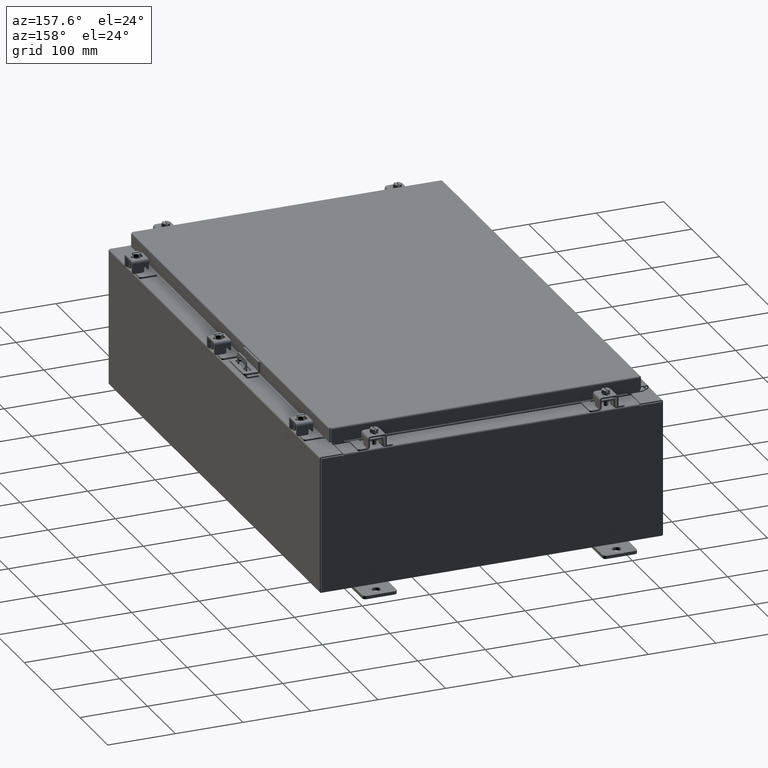
[diagram: clean part render]
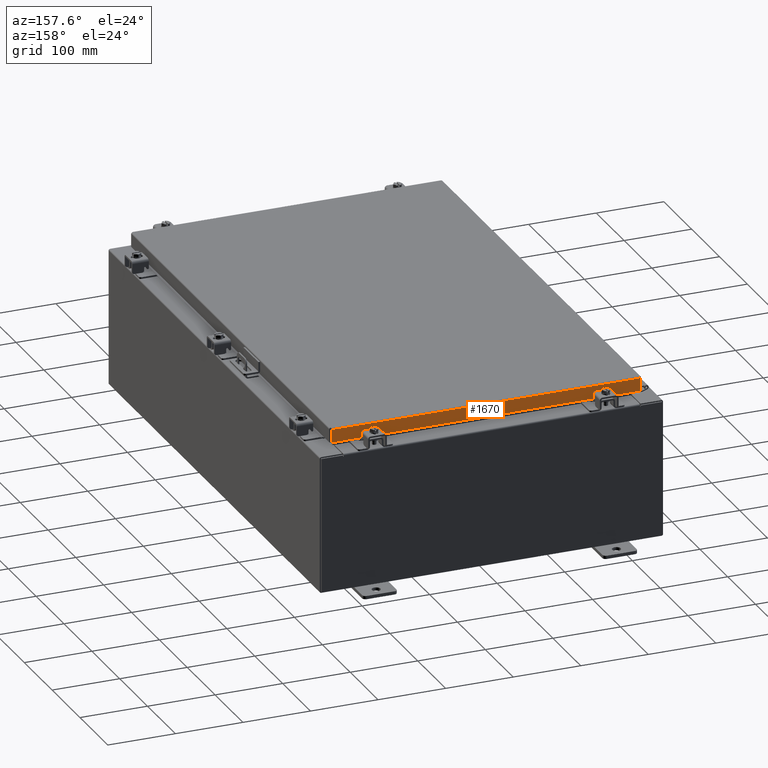
[diagram: same view with one face highlighted and labeled with its STEP entity id]
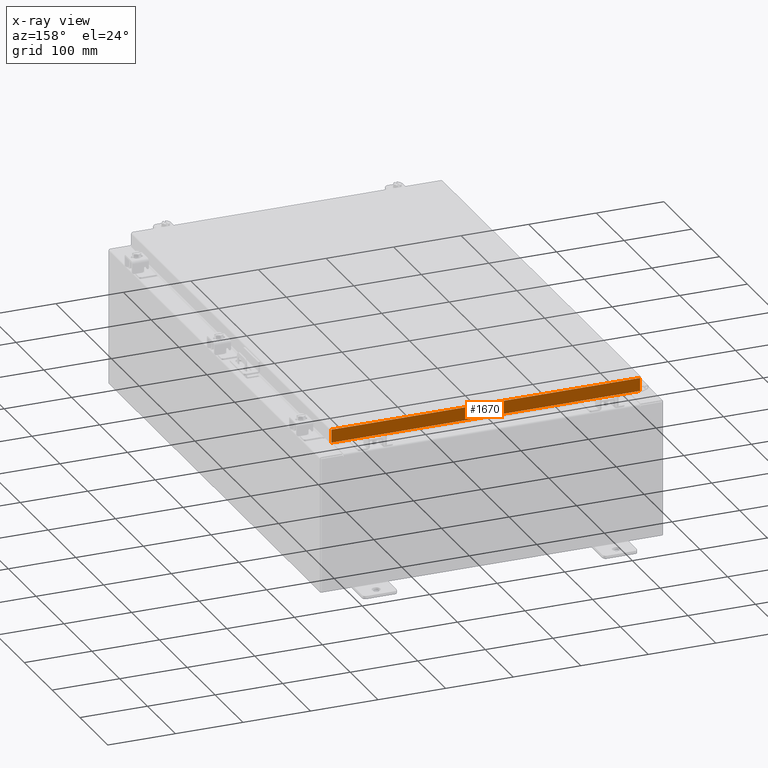
[diagram: x-ray of the same camera — body ghosted, the highlighted face saturated]
A machine part, auxiliary view. The second image highlights one B-rep face of the part: STEP entity #1670.
The next image is the same camera in x-ray: the body ghosted, the highlighted face saturated — about 0% of this face is hidden behind the body in this view.
In plain terms, the highlighted planar face has unit normal (0, -1, -0).
Its self-contained STEP definition (entity closure, byte-faithful):
#74 = DIRECTION ( 'NONE',  ( -0.0000000000000000000, 2.818880942772351900E-015, -1.000000000000000000 ) ) ;
#553 = CARTESIAN_POINT ( 'NONE',  ( -8.989157864376267100, 14.09399999999999900, -0.07469999999999978000 ) ) ;
#823 = LINE ( 'NONE', #36207, #21942 ) ;
#971 = AXIS2_PLACEMENT_3D ( 'NONE', #10120, #31461, #32468 ) ;
#1217 = VECTOR ( 'NONE', #36032, 39.37007874015748100 ) ;
#1670 = ADVANCED_FACE ( 'NONE', ( #19690 ), #27153, .F. ) ;
#3353 = ORIENTED_EDGE ( 'NONE', *, *, #11608, .T. ) ;
#4136 = CARTESIAN_POINT ( 'NONE',  ( -8.989157864376267100, 14.09400000000000100, -0.8500000000000019800 ) ) ;
#6862 = ORIENTED_EDGE ( 'NONE', *, *, #22716, .F. ) ;
#7403 = CARTESIAN_POINT ( 'NONE',  ( 8.989157864376268800, 14.09400000000000100, -0.8499999999999996400 ) ) ;
#9486 = EDGE_CURVE ( 'NONE', #11211, #32693, #823, .T. ) ;
#10120 = CARTESIAN_POINT ( 'NONE',  ( -5.081199923678690200E-030, 14.09399999999999900, 3.999012166344510300E-014 ) ) ;
#10341 = ORIENTED_EDGE ( 'NONE', *, *, #9486, .F. ) ;
#10683 = CARTESIAN_POINT ( 'NONE',  ( 8.989157864376268800, 14.09399999999999900, 3.999012166344510300E-014 ) ) ;
#11211 = VERTEX_POINT ( 'NONE', #4136 ) ;
#11608 = EDGE_CURVE ( 'NONE', #29428, #30465, #34918, .T. ) ;
#12483 = LINE ( 'NONE', #17422, #34796 ) ;
#13156 = DIRECTION ( 'NONE',  ( 1.000000000000000000, -0.0000000000000000000, -0.0000000000000000000 ) ) ;
#13687 = CARTESIAN_POINT ( 'NONE',  ( -8.239157864376267100, 14.09399999999999900, -0.8500000000000029800 ) ) ;
#14604 = LINE ( 'NONE', #18542, #1217 ) ;
#15861 = EDGE_CURVE ( 'NONE', #32693, #23413, #25933, .T. ) ;
#17340 = DIRECTION ( 'NONE',  ( -1.000000000000000000, -3.605222026166234800E-031, -9.826997386333231700E-046 ) ) ;
#17422 = CARTESIAN_POINT ( 'NONE',  ( -9.077999999999997600, 14.09399999999999900, -0.08770000000000007000 ) ) ;
#18445 = EDGE_CURVE ( 'NONE', #29428, #36854, #12483, .T. ) ;
#18508 = VECTOR ( 'NONE', #27660, 39.37007874015748100 ) ;
#18542 = CARTESIAN_POINT ( 'NONE',  ( -9.077999999999997600, 14.09400000000000100, -0.8500000000000019800 ) ) ;
#18592 = ORIENTED_EDGE ( 'NONE', *, *, #18445, .F. ) ;
#18861 = CARTESIAN_POINT ( 'NONE',  ( -8.989157864376267100, 14.09399999999999900, -0.08770000000000007000 ) ) ;
#19690 = FACE_OUTER_BOUND ( 'NONE', #25377, .T. ) ;
#21346 = ORIENTED_EDGE ( 'NONE', *, *, #15861, .F. ) ;
#21942 = VECTOR ( 'NONE', #36180, 39.37007874015748100 ) ;
#22716 = EDGE_CURVE ( 'NONE', #36854, #11211, #35002, .T. ) ;
#23413 = VERTEX_POINT ( 'NONE', #26373 ) ;
#25377 = EDGE_LOOP ( 'NONE', ( #18592, #3353, #30010, #21346, #10341, #6862 ) ) ;
#25933 = LINE ( 'NONE', #13687, #32814 ) ;
#26373 = CARTESIAN_POINT ( 'NONE',  ( 8.239157864376268800, 14.09399999999999900, -0.8500000000000029800 ) ) ;
#27153 = PLANE ( 'NONE',  #971 ) ;
#27222 = VECTOR ( 'NONE', #74, 39.37007874015748100 ) ;
#27660 = DIRECTION ( 'NONE',  ( 0.0000000000000000000, 2.818880942772351900E-015, -1.000000000000000000 ) ) ;
#28767 = CARTESIAN_POINT ( 'NONE',  ( 8.989157864376268800, 14.09399999999999900, -0.08770000000000007000 ) ) ;
#29428 = VERTEX_POINT ( 'NONE', #28767 ) ;
#30010 = ORIENTED_EDGE ( 'NONE', *, *, #35436, .F. ) ;
#30465 = VERTEX_POINT ( 'NONE', #7403 ) ;
#31461 = DIRECTION ( 'NONE',  ( 3.605222026166233900E-031, -1.000000000000000000, -2.818880942772351900E-015 ) ) ;
#31976 = CARTESIAN_POINT ( 'NONE',  ( -8.239157864376265300, 14.09399999999999900, -0.8500000000000029800 ) ) ;
#32468 = DIRECTION ( 'NONE',  ( 0.0000000000000000000, 2.818880942772351900E-015, -1.000000000000000000 ) ) ;
#32693 = VERTEX_POINT ( 'NONE', #31976 ) ;
#32814 = VECTOR ( 'NONE', #13156, 39.37007874015748100 ) ;
#34796 = VECTOR ( 'NONE', #17340, 39.37007874015748100 ) ;
#34918 = LINE ( 'NONE', #10683, #18508 ) ;
#35002 = LINE ( 'NONE', #553, #27222 ) ;
#35436 = EDGE_CURVE ( 'NONE', #23413, #30465, #14604, .T. ) ;
#36032 = DIRECTION ( 'NONE',  ( 1.000000000000000000, -4.379057701015054300E-047, 1.278955053213606700E-016 ) ) ;
#36180 = DIRECTION ( 'NONE',  ( 1.000000000000000000, -4.379057701015054300E-047, 1.278955053213606700E-016 ) ) ;
#36207 = CARTESIAN_POINT ( 'NONE',  ( -9.077999999999997600, 14.09400000000000100, -0.8500000000000019800 ) ) ;
#36854 = VERTEX_POINT ( 'NONE', #18861 ) ;